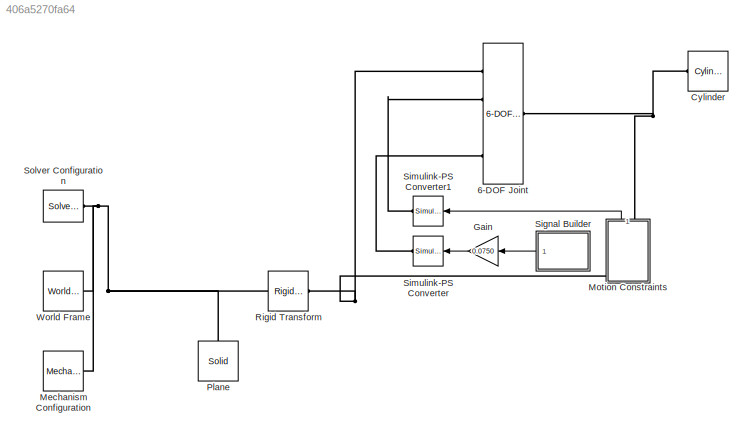
MODEL slx_406a5270fa64
KIND model
CONFIG AbsTol = auto
CONFIG EnableMultiTasking = on
CONFIG FixedStep = auto
CONFIG MaxStep = auto
CONFIG MinStep = auto
CONFIG RelTol = 1e-3
CONFIG SampleTimeConstraint = Unconstrained
CONFIG Solver = VariableStepAuto
CONFIG SolverName = VariableStepAuto
CONFIG StartTime = 0.0
CONFIG StopTime = 30
BLOCK [Reference] 6-DOF Joint  REF=sm_lib/Joints/6-DOF Joint
  Ports = [0, 0, 0, 0, 0, 4, 1]
  SourceBlock = sm_lib/Joints/6-DOF Joint
  SourceProductBaseCode = MS
  SourceProductName = Simscape Multibody
  SourceType = 6-DOF Joint
BLOCK [Reference] Cylinder  REF=Parts_Lib/Cylinder
  Ports = [0, 0, 0, 0, 0, 1]
  SourceBlock = Parts_Lib/Cylinder
  SourceType = Solid Cylinder with Markings
  Tag = CustomStyle
BLOCK [Gain] Gain
  Gain = 0.0750
  OutDataTypeStr = Inherit: Inherit via internal rule
  ParamDataTypeStr = Inherit: Inherit via internal rule
  SaturateOnIntegerOverflow = off
BLOCK [Reference] Mechanism Configuration  REF=sm_lib/Utilities/Mechanism
Configuration
  Ports = [0, 0, 0, 0, 0, 0, 1]
  SourceBlock = sm_lib/Utilities/Mechanism\nConfiguration
  SourceProductBaseCode = MS
  SourceProductName = Simscape Multibody
  SourceType = Mechanism\nConfiguration
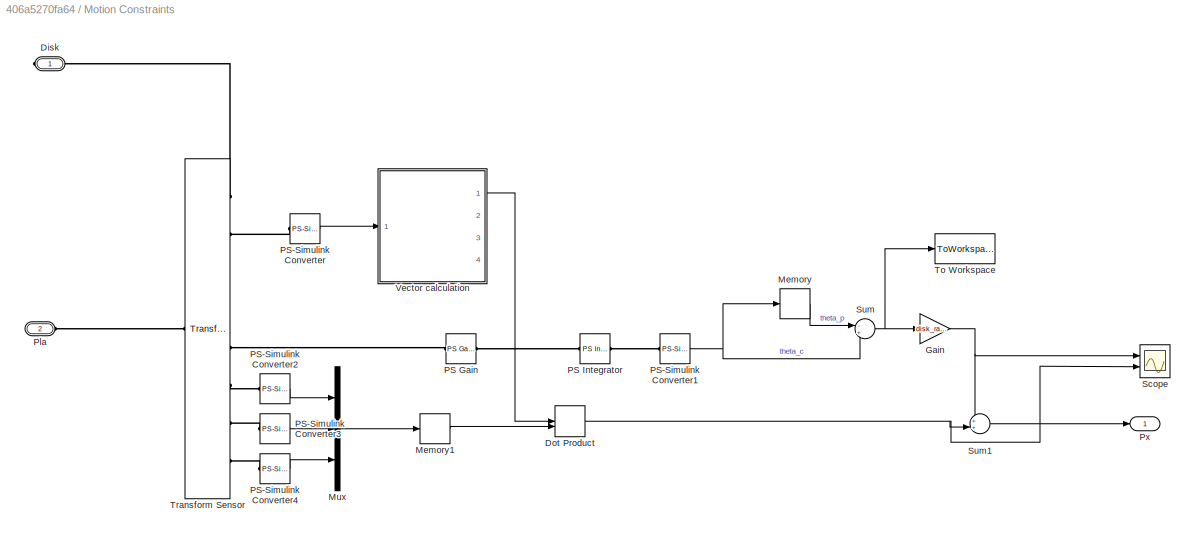
BLOCK [SubSystem] Motion Constraints
  Ports = [0, 1, 0, 0, 0, 1, 1]
  RequestExecContextInheritance = off
  Variant = off
BLOCK [PMIOPort] Motion Constraints/Disk
  Port = 1
  Side = Right
BLOCK [DotProduct] Motion Constraints/Dot Product
  OutDataTypeStr = Inherit: Inherit via internal rule
BLOCK [Gain] Motion Constraints/Gain
  Gain = disk_radius
  OutDataTypeStr = Inherit: Inherit via internal rule
  ParamDataTypeStr = Inherit: Inherit via internal rule
  SaturateOnIntegerOverflow = off
BLOCK [Memory] Motion Constraints/Memory
BLOCK [Memory] Motion Constraints/Memory1
BLOCK [Mux] Motion Constraints/Mux
  DisplayOption = bar
  Inputs = 3
  Ports = [3, 1]
BLOCK [Reference] Motion Constraints/PS Gain  REF=fl_lib/Physical Signals/Functions/PS Gain
  Ports = [0, 0, 0, 0, 0, 1, 1]
  SourceBlock = fl_lib/Physical Signals/Functions/PS Gain
  SourceProductBaseCode = SS
  SourceProductName = Simscape
  SourceType = PS Gain
BLOCK [Reference] Motion Constraints/PS Integrator  REF=fl_lib/Physical Signals/Linear Operators/PS Integrator
  Ports = [0, 0, 0, 0, 0, 1, 1]
  SourceBlock = fl_lib/Physical Signals/Linear Operators/PS Integrator
  SourceProductBaseCode = SS
  SourceProductName = Simscape
  SourceType = PS Integrator
BLOCK [Reference] Motion Constraints/PS-Simulink Converter  REF=nesl_utility/PS-Simulink
Converter
  Ports = [0, 1, 0, 0, 0, 1]
  SourceBlock = nesl_utility/PS-Simulink\nConverter
  SourceProductBaseCode = SS
  SourceProductName = Simscape
  SourceType = PS-Simulink\nConverter
BLOCK [Reference] Motion Constraints/PS-Simulink Converter1  REF=nesl_utility/PS-Simulink
Converter
  Ports = [0, 1, 0, 0, 0, 1]
  SourceBlock = nesl_utility/PS-Simulink\nConverter
  SourceProductBaseCode = SS
  SourceProductName = Simscape
  SourceType = PS-Simulink\nConverter
BLOCK [Reference] Motion Constraints/PS-Simulink Converter2  REF=nesl_utility/PS-Simulink
Converter
  Ports = [0, 1, 0, 0, 0, 1]
  SourceBlock = nesl_utility/PS-Simulink\nConverter
  SourceProductBaseCode = SS
  SourceProductName = Simscape
  SourceType = PS-Simulink\nConverter
BLOCK [Reference] Motion Constraints/PS-Simulink Converter3  REF=nesl_utility/PS-Simulink
Converter
  Ports = [0, 1, 0, 0, 0, 1]
  SourceBlock = nesl_utility/PS-Simulink\nConverter
  SourceProductBaseCode = SS
  SourceProductName = Simscape
  SourceType = PS-Simulink\nConverter
BLOCK [Reference] Motion Constraints/PS-Simulink Converter4  REF=nesl_utility/PS-Simulink
Converter
  Ports = [0, 1, 0, 0, 0, 1]
  SourceBlock = nesl_utility/PS-Simulink\nConverter
  SourceProductBaseCode = SS
  SourceProductName = Simscape
  SourceType = PS-Simulink\nConverter
BLOCK [PMIOPort] Motion Constraints/Pla
  Port = 2
  Side = Left
BLOCK [Outport] Motion Constraints/Px
  IconDisplay = Port number
BLOCK [Scope] Motion Constraints/Scope
  NumInputPorts = 2
  Ports = [2]
  ScopeSpecificationString = Simulink.scopes.TimeScopeBlockCfg('CurrentConfiguration', extmgr.ConfigurationSet(extmgr.Configuration('Core','General UI',true),extmgr.Configuration('Core','Source UI',true),extmgr.Configuration('Sources','WiredSimulink',true),extmgr.Configuration('Visuals','Time Domain',true,'SerializedDisplays',{struct('MinYLimReal','-2.09267','MaxYLimReal','0.23252','YLabelReal','','MinYLimMag','0.00000','MaxY...<+1365ch>
BLOCK [Sum] Motion Constraints/Sum
  IconShape = round
  InputSameDT = off
  Inputs = -+
  OutDataTypeStr = Inherit: Inherit via internal rule
  Ports = [2, 1]
  SaturateOnIntegerOverflow = off
BLOCK [Sum] Motion Constraints/Sum1
  IconShape = round
  InputSameDT = off
  Inputs = ++|
  OutDataTypeStr = Inherit: Inherit via internal rule
  Ports = [2, 1]
  SaturateOnIntegerOverflow = off
BLOCK [ToWorkspace] Motion Constraints/To Workspace
  FixptAsFi = on
  MaxDataPoints = inf
  Ports = [1]
  SampleTime = -1
  Save2DSignal = 3-D array (concatenate along third dimension)
  SaveFormat = Timeseries
  VariableName = omega_diff
BLOCK [Reference] Motion Constraints/Transform Sensor  REF=sm_lib/Frames and
Transforms/Transform
Sensor
  Ports = [0, 0, 0, 0, 0, 1, 8]
  SourceBlock = sm_lib/Frames and\nTransforms/Transform\nSensor
  SourceProductBaseCode = MS
  SourceProductName = Simscape Multibody
  SourceType = Transform\nSensor
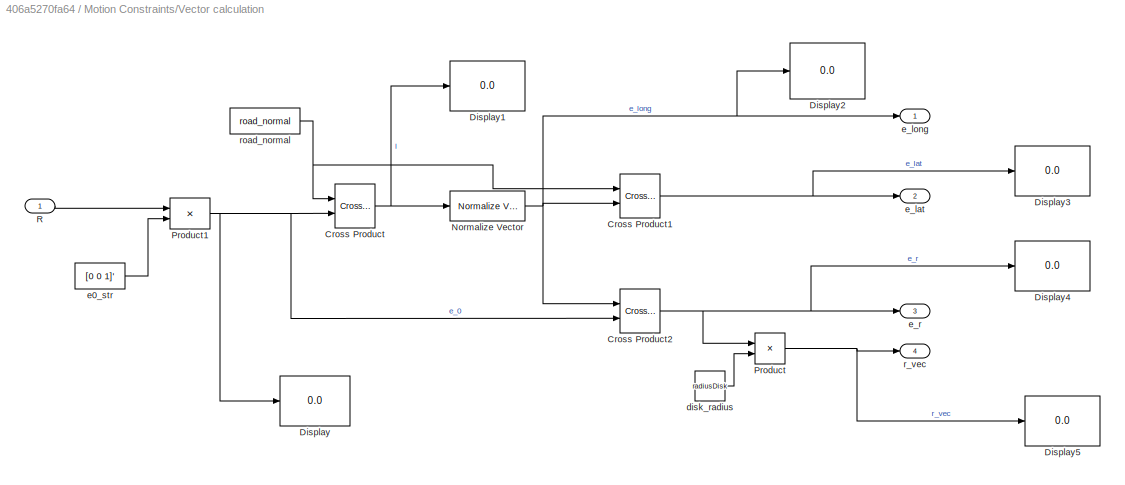
BLOCK [SubSystem] Motion Constraints/Vector calculation
  Ports = [1, 4]
  RequestExecContextInheritance = off
  Variant = off
BLOCK [Reference] Motion Constraints/Vector calculation/Cross Product  REF=Contact_Forces_Lib/Math/Cross
Product
  Ports = [2, 1]
  SourceBlock = Contact_Forces_Lib/Math/Cross\nProduct
  SourceType = SubSystem
BLOCK [Reference] Motion Constraints/Vector calculation/Cross Product1  REF=Contact_Forces_Lib/Math/Cross
Product
  Ports = [2, 1]
  SourceBlock = Contact_Forces_Lib/Math/Cross\nProduct
  SourceType = SubSystem
BLOCK [Reference] Motion Constraints/Vector calculation/Cross Product2  REF=Contact_Forces_Lib/Math/Cross
Product
  Ports = [2, 1]
  SourceBlock = Contact_Forces_Lib/Math/Cross\nProduct
  SourceType = SubSystem
BLOCK [Display] Motion Constraints/Vector calculation/Display
  Decimation = 1
  Ports = [1]
BLOCK [Display] Motion Constraints/Vector calculation/Display1
  Decimation = 1
  Ports = [1]
BLOCK [Display] Motion Constraints/Vector calculation/Display2
  Decimation = 1
  Ports = [1]
BLOCK [Display] Motion Constraints/Vector calculation/Display3
  Decimation = 1
  Ports = [1]
BLOCK [Display] Motion Constraints/Vector calculation/Display4
  Decimation = 1
  Ports = [1]
BLOCK [Display] Motion Constraints/Vector calculation/Display5
  Decimation = 1
  Ports = [1]
BLOCK [Reference] Motion Constraints/Vector calculation/Normalize Vector  REF=vrlib/Utilities/Normalize Vector
  Ports = [1, 1]
  SourceBlock = vrlib/Utilities/Normalize Vector
  SourceProductBaseCode = VR
  SourceProductName = Simulink 3D Animation
  SourceType = Normalize Vector
BLOCK [Product] Motion Constraints/Vector calculation/Product
  InputSameDT = off
  OutDataTypeStr = Inherit: Inherit via internal rule
  Ports = [2, 1]
  RndMeth = Floor
  SaturateOnIntegerOverflow = off
BLOCK [Product] Motion Constraints/Vector calculation/Product1
  InputSameDT = off
  Multiplication = Matrix(*)
  OutDataTypeStr = Inherit: Inherit via internal rule
  Ports = [2, 1]
  RndMeth = Floor
  SaturateOnIntegerOverflow = off
BLOCK [Inport] Motion Constraints/Vector calculation/R
  IconDisplay = Port number
BLOCK [Constant] Motion Constraints/Vector calculation/disk_radius
  Value = radiusDisk
BLOCK [Constant] Motion Constraints/Vector calculation/e0_str
  Value = [0 0 1]'
BLOCK [Outport] Motion Constraints/Vector calculation/e_lat
  IconDisplay = Port number
  Port = 2
BLOCK [Outport] Motion Constraints/Vector calculation/e_long
  IconDisplay = Port number
BLOCK [Outport] Motion Constraints/Vector calculation/e_r
  IconDisplay = Port number
  Port = 3
BLOCK [Outport] Motion Constraints/Vector calculation/r_vec
  IconDisplay = Port number
  Port = 4
BLOCK [Constant] Motion Constraints/Vector calculation/road_normal
  Value = road_normal
BLOCK [Reference] Plane  REF=sm_lib/Body Elements/Solid
  Ports = [0, 0, 0, 0, 0, 0, 1]
  SourceBlock = sm_lib/Body Elements/Solid
  SourceProductBaseCode = MS
  SourceProductName = Simscape Multibody
  SourceType = Solid
BLOCK [Reference] Rigid Transform  REF=sm_lib/Frames and
Transforms/Rigid
Transform
  Ports = [0, 0, 0, 0, 0, 1, 1]
  SourceBlock = sm_lib/Frames and\nTransforms/Rigid\nTransform
  SourceProductBaseCode = MS
  SourceProductName = Simscape Multibody
  SourceType = Rigid\nTransform
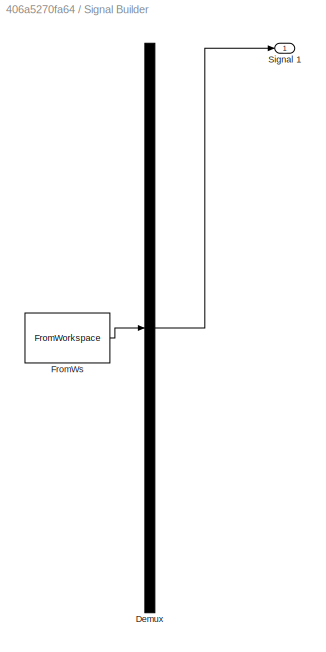
BLOCK [SubSystem] Signal Builder
  ClipboardFcn = sigbuilder_block('clipboard');
  CloseFcn = sigbuilder_block('close');
  ContinueFcn = sigbuilder_block('continue');
  CopyFcn = sigbuilder_block('copy');
  DeleteFcn = sigbuilder_block('delete');
  LoadFcn = sigbuilder_block('load');
  MaskHideContents = on
  ModelCloseFcn = sigbuilder_block('modelClose');
  NameChangeFcn = sigbuilder_block('namechange');
  OpenFcn = sigbuilder_block('open',[434.25 154.5 556.5 354 ]);
  PauseFcn = sigbuilder_block('pause');
  Ports = [0, 1]
  PreSaveFcn = sigbuilder_block('preSave');
  RequestExecContextInheritance = off
  StartFcn = sigbuilder_block('start');
  StopFcn = sigbuilder_block('stop');
  Tag = STV Subsys
  Variant = off
BLOCK [Demux] Signal Builder/Demux
  Outputs = 1
  Ports = [1, 1]
  Tag = STV Demux
BLOCK [FromWorkspace] Signal Builder/FromWs
  SampleTime = 0
  Tag = STV FromWs
  VariableName = tuvar
  ZeroCross = on
BLOCK [Outport] Signal Builder/Signal 1
  IconDisplay = Port number
  Tag = STV Outport
BLOCK [Reference] Simulink-PS Converter  REF=nesl_utility/Simulink-PS
Converter
  Ports = [1, 0, 0, 0, 0, 0, 1]
  SourceBlock = nesl_utility/Simulink-PS\nConverter
  SourceProductBaseCode = SS
  SourceProductName = Simscape
  SourceType = Simulink-PS\nConverter
BLOCK [Reference] Simulink-PS Converter1  REF=nesl_utility/Simulink-PS
Converter
  Ports = [1, 0, 0, 0, 0, 0, 1]
  SourceBlock = nesl_utility/Simulink-PS\nConverter
  SourceProductBaseCode = SS
  SourceProductName = Simscape
  SourceType = Simulink-PS\nConverter
BLOCK [Reference] Solver Configuration  REF=nesl_utility/Solver
Configuration
  Ports = [0, 0, 0, 0, 0, 0, 1]
  SourceBlock = nesl_utility/Solver\nConfiguration
  SourceProductBaseCode = SS
  SourceProductName = Simscape
  SourceType = Solver\nConfiguration
BLOCK [Reference] World Frame  REF=sm_lib/Frames and
Transforms/World Frame
  Ports = [0, 0, 0, 0, 0, 0, 1]
  SourceBlock = sm_lib/Frames and\nTransforms/World Frame
  SourceProductBaseCode = MS
  SourceProductName = Simscape Multibody
  SourceType = World Frame
LINE Gain:1 -> Simulink-PS Converter:1
NET Motion Constraints/Dot Product:1 -> Motion Constraints/Scope:2, Motion Constraints/Sum1:2
NET Motion Constraints/Gain:1 -> Motion Constraints/Scope:1, Motion Constraints/Sum1:1
LINE Motion Constraints/Memory1:1 -> Motion Constraints/Dot Product:2
LINE Motion Constraints/Memory:1 -> Motion Constraints/Sum:1
LINE Motion Constraints/Mux:1 -> Motion Constraints/Memory1:1
NET Motion Constraints/PS-Simulink Converter1:1 -> Motion Constraints/Memory:1, Motion Constraints/Sum:2
LINE Motion Constraints/PS-Simulink Converter2:1 -> Motion Constraints/Mux:1
LINE Motion Constraints/PS-Simulink Converter3:1 -> Motion Constraints/Mux:2
LINE Motion Constraints/PS-Simulink Converter4:1 -> Motion Constraints/Mux:3
LINE Motion Constraints/PS-Simulink Converter:1 -> Motion Constraints/Vector calculation:1
LINE Motion Constraints/Sum1:1 -> Motion Constraints/Px:1
NET Motion Constraints/Sum:1 -> Motion Constraints/Gain:1, Motion Constraints/To Workspace:1
NET Motion Constraints/Vector calculation/Cross Product1:1 -> Motion Constraints/Vector calculation/Display3:1, Motion Constraints/Vector calculation/e_lat:1
NET Motion Constraints/Vector calculation/Cross Product2:1 -> Motion Constraints/Vector calculation/Display4:1, Motion Constraints/Vector calculation/Product:1, Motion Constraints/Vector calculation/e_r:1
NET Motion Constraints/Vector calculation/Cross Product:1 -> Motion Constraints/Vector calculation/Display1:1, Motion Constraints/Vector calculation/Normalize Vector:1
NET Motion Constraints/Vector calculation/Normalize Vector:1 -> Motion Constraints/Vector calculation/Cross Product1:2, Motion Constraints/Vector calculation/Cross Product2:1, Motion Constraints/Vector calculation/Display2:1, Motion Constraints/Vector calculation/e_long:1
NET Motion Constraints/Vector calculation/Product1:1 -> Motion Constraints/Vector calculation/Cross Product2:2, Motion Constraints/Vector calculation/Cross Product:2, Motion Constraints/Vector calculation/Display:1
NET Motion Constraints/Vector calculation/Product:1 -> Motion Constraints/Vector calculation/Display5:1, Motion Constraints/Vector calculation/r_vec:1
LINE Motion Constraints/Vector calculation/R:1 -> Motion Constraints/Vector calculation/Product1:1
LINE Motion Constraints/Vector calculation/disk_radius:1 -> Motion Constraints/Vector calculation/Product:2
LINE Motion Constraints/Vector calculation/e0_str:1 -> Motion Constraints/Vector calculation/Product1:2
NET Motion Constraints/Vector calculation/road_normal:1 -> Motion Constraints/Vector calculation/Cross Product1:1, Motion Constraints/Vector calculation/Cross Product:1
LINE Motion Constraints/Vector calculation:1 -> Motion Constraints/Dot Product:1
LINE Motion Constraints:1 -> Simulink-PS Converter1:1
LINE Signal Builder:1 -> Gain:1
PNET net1: 6-DOF Joint:LConn1 -- Motion Constraints:LConn1 -- Rigid Transform:RConn1
PLINE 6-DOF Joint:LConn2 -- Simulink-PS Converter1:RConn1
PLINE 6-DOF Joint:LConn4 -- Simulink-PS Converter:RConn1
PNET net2: 6-DOF Joint:RConn1 -- Cylinder:LConn1 -- Motion Constraints:RConn1
PNET net3: Mechanism Configuration:RConn1 -- Plane:RConn1 -- Rigid Transform:LConn1 -- Solver Configuration:RConn1 -- World Frame:RConn1
PLINE Motion Constraints/Disk:RConn1 -- Motion Constraints/Transform Sensor:RConn1
PLINE Motion Constraints/PS Gain:LConn1 -- Motion Constraints/Transform Sensor:RConn5
PLINE Motion Constraints/PS Gain:RConn1 -- Motion Constraints/PS Integrator:LConn1
PLINE Motion Constraints/PS Integrator:RConn1 -- Motion Constraints/PS-Simulink Converter1:LConn1
PLINE Motion Constraints/PS-Simulink Converter2:LConn1 -- Motion Constraints/Transform Sensor:RConn6
PLINE Motion Constraints/PS-Simulink Converter3:LConn1 -- Motion Constraints/Transform Sensor:RConn7
PLINE Motion Constraints/PS-Simulink Converter4:LConn1 -- Motion Constraints/Transform Sensor:RConn8
PLINE Motion Constraints/PS-Simulink Converter:LConn1 -- Motion Constraints/Transform Sensor:RConn2
PLINE Motion Constraints/Pla:RConn1 -- Motion Constraints/Transform Sensor:LConn1
note: NET lines group one-source signal fan-out (src -> all destinations, sorted); 1:1 wires keep LINE; PNET lines group multi-terminal physical nets as a canonical sorted terminal list (undirected conserving connections); 2-terminal nets keep the pairwise PLINE form
